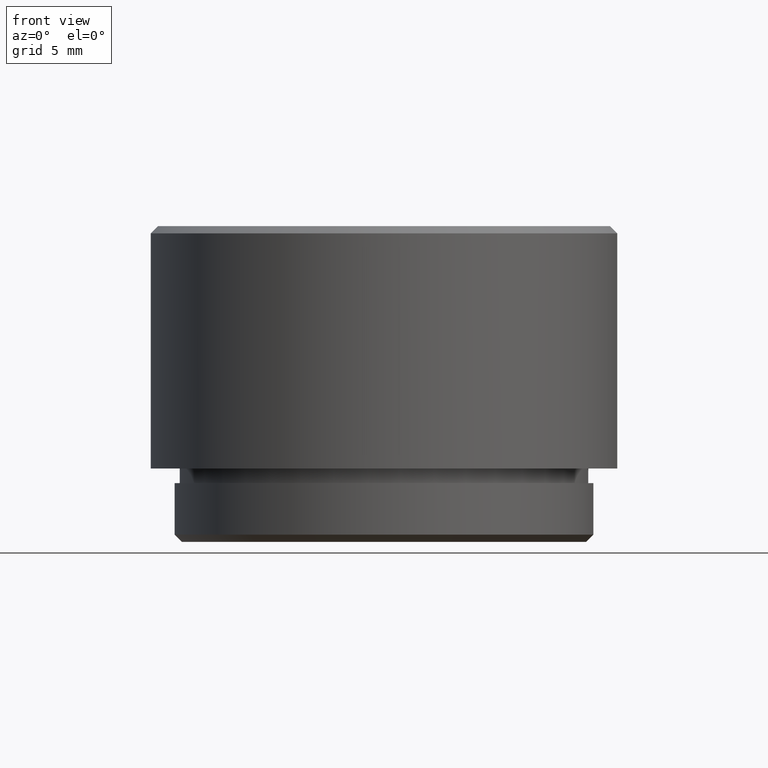
[diagram: clean part render]
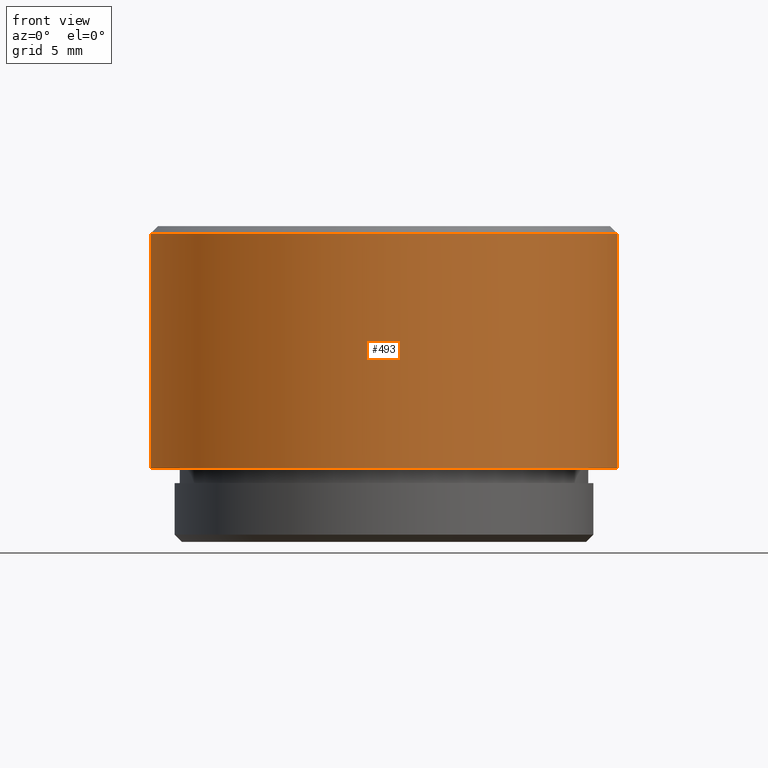
[diagram: same view with one face highlighted and labeled with its STEP entity id]
A machine part, front view. The second image highlights one B-rep face of the part: STEP entity #493.
In plain terms, the highlighted cylindrical surface (partial cylindrical patch) has radius 15.878 mm, axis along (-0, -0, -1).
Its self-contained STEP definition (entity closure, byte-faithful):
#48 = ORIENTED_EDGE ( 'NONE', *, *, #254, .T. ) ;
#51 = CARTESIAN_POINT ( 'NONE',  ( 0.000000000000000000, 0.000000000000000000, 21.50000000000000000 ) ) ;
#126 = LINE ( 'NONE', #1346, #1288 ) ;
#154 = CIRCLE ( 'NONE', #452, 15.87800000000000011 ) ;
#160 = DIRECTION ( 'NONE',  ( 1.000000000000000000, 0.000000000000000000, 0.000000000000000000 ) ) ;
#195 = DIRECTION ( 'NONE',  ( -1.000000000000000000, 0.000000000000000000, 0.000000000000000000 ) ) ;
#205 = EDGE_LOOP ( 'NONE', ( #246, #48, #1135, #1271 ) ) ;
#208 = DIRECTION ( 'NONE',  ( -1.000000000000000000, 0.000000000000000000, 0.000000000000000000 ) ) ;
#236 = VERTEX_POINT ( 'NONE', #690 ) ;
#246 = ORIENTED_EDGE ( 'NONE', *, *, #830, .F. ) ;
#254 = EDGE_CURVE ( 'NONE', #1455, #236, #616, .T. ) ;
#273 = VECTOR ( 'NONE', #1315, 1000.000000000000000 ) ;
#328 = VERTEX_POINT ( 'NONE', #792 ) ;
#378 = CARTESIAN_POINT ( 'NONE',  ( 15.87800000000000011, 1.944494187686167431E-15, 21.50000000000000000 ) ) ;
#452 = AXIS2_PLACEMENT_3D ( 'NONE', #872, #1426, #208 ) ;
#493 = ADVANCED_FACE ( 'NONE', ( #1115 ), #1093, .T. ) ;
#544 = DIRECTION ( 'NONE',  ( -0.000000000000000000, -0.000000000000000000, -1.000000000000000000 ) ) ;
#616 = CIRCLE ( 'NONE', #808, 15.87800000000000011 ) ;
#690 = CARTESIAN_POINT ( 'NONE',  ( -15.87800000000000011, 0.000000000000000000, 20.99999999999999289 ) ) ;
#792 = CARTESIAN_POINT ( 'NONE',  ( -15.87800000000000011, 0.000000000000000000, 5.000000000000000000 ) ) ;
#808 = AXIS2_PLACEMENT_3D ( 'NONE', #1602, #1339, #160 ) ;
#830 = EDGE_CURVE ( 'NONE', #1455, #1024, #1299, .T. ) ;
#872 = CARTESIAN_POINT ( 'NONE',  ( 0.000000000000000000, 0.000000000000000000, 5.000000000000000000 ) ) ;
#1003 = EDGE_CURVE ( 'NONE', #236, #328, #126, .T. ) ;
#1024 = VERTEX_POINT ( 'NONE', #1202 ) ;
#1093 = CYLINDRICAL_SURFACE ( 'NONE', #1617, 15.87800000000000011 ) ;
#1115 = FACE_OUTER_BOUND ( 'NONE', #205, .T. ) ;
#1135 = ORIENTED_EDGE ( 'NONE', *, *, #1003, .T. ) ;
#1180 = CARTESIAN_POINT ( 'NONE',  ( 15.87800000000000011, 1.944494187686167431E-15, 20.99999999999999289 ) ) ;
#1202 = CARTESIAN_POINT ( 'NONE',  ( 15.87800000000000011, 1.944494187686167431E-15, 5.000000000000000000 ) ) ;
#1271 = ORIENTED_EDGE ( 'NONE', *, *, #1652, .F. ) ;
#1288 = VECTOR ( 'NONE', #544, 1000.000000000000000 ) ;
#1299 = LINE ( 'NONE', #378, #273 ) ;
#1315 = DIRECTION ( 'NONE',  ( -0.000000000000000000, -0.000000000000000000, -1.000000000000000000 ) ) ;
#1339 = DIRECTION ( 'NONE',  ( 0.000000000000000000, 0.000000000000000000, -1.000000000000000000 ) ) ;
#1346 = CARTESIAN_POINT ( 'NONE',  ( -15.87800000000000011, 0.000000000000000000, 21.50000000000000000 ) ) ;
#1396 = DIRECTION ( 'NONE',  ( -0.000000000000000000, -0.000000000000000000, -1.000000000000000000 ) ) ;
#1426 = DIRECTION ( 'NONE',  ( 0.000000000000000000, 0.000000000000000000, -1.000000000000000000 ) ) ;
#1455 = VERTEX_POINT ( 'NONE', #1180 ) ;
#1602 = CARTESIAN_POINT ( 'NONE',  ( 0.000000000000000000, 0.000000000000000000, 20.99999999999999289 ) ) ;
#1617 = AXIS2_PLACEMENT_3D ( 'NONE', #51, #1396, #195 ) ;
#1652 = EDGE_CURVE ( 'NONE', #1024, #328, #154, .T. ) ;